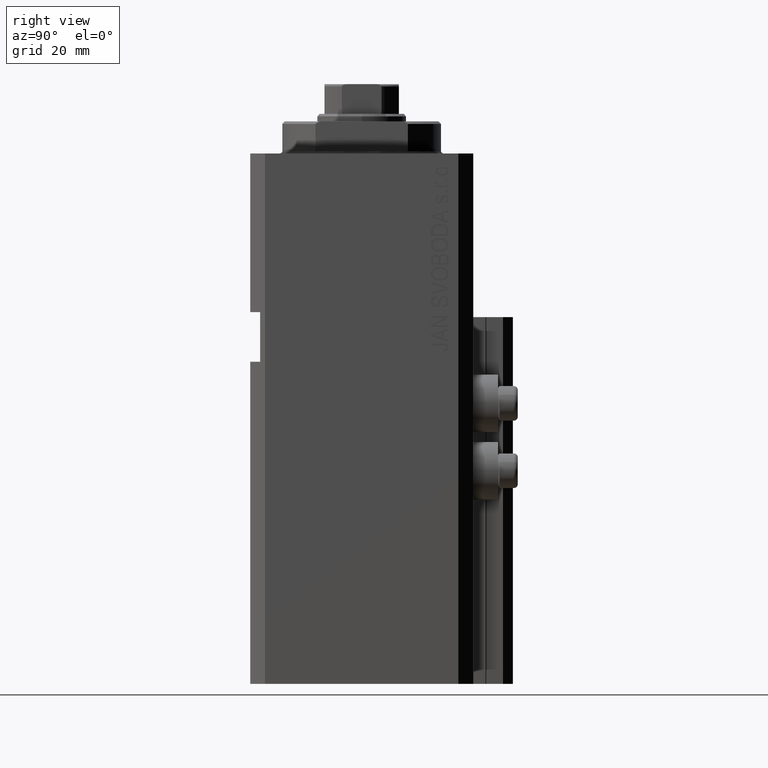
[diagram: clean part render]
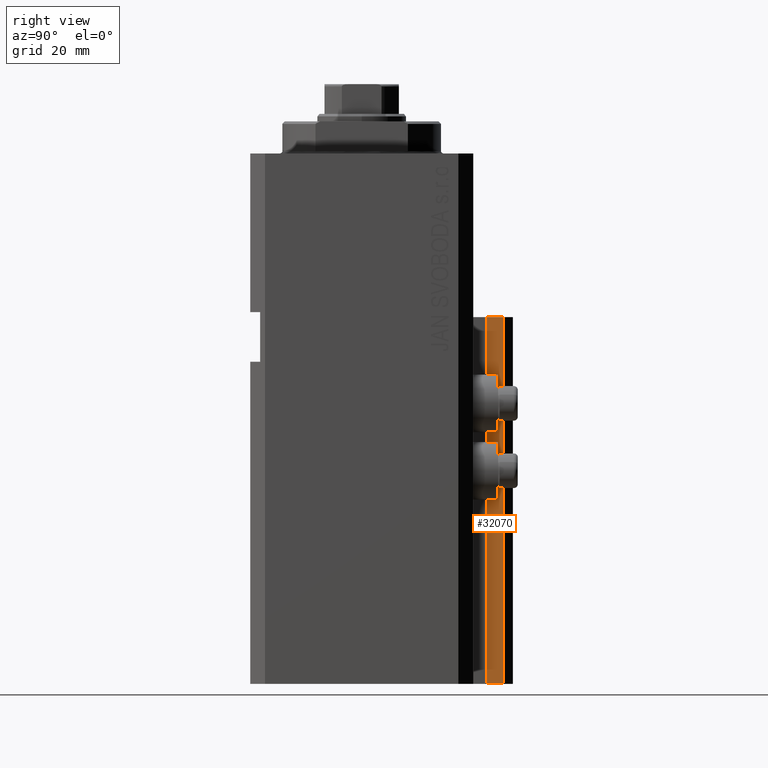
[diagram: same view with one face highlighted and labeled with its STEP entity id]
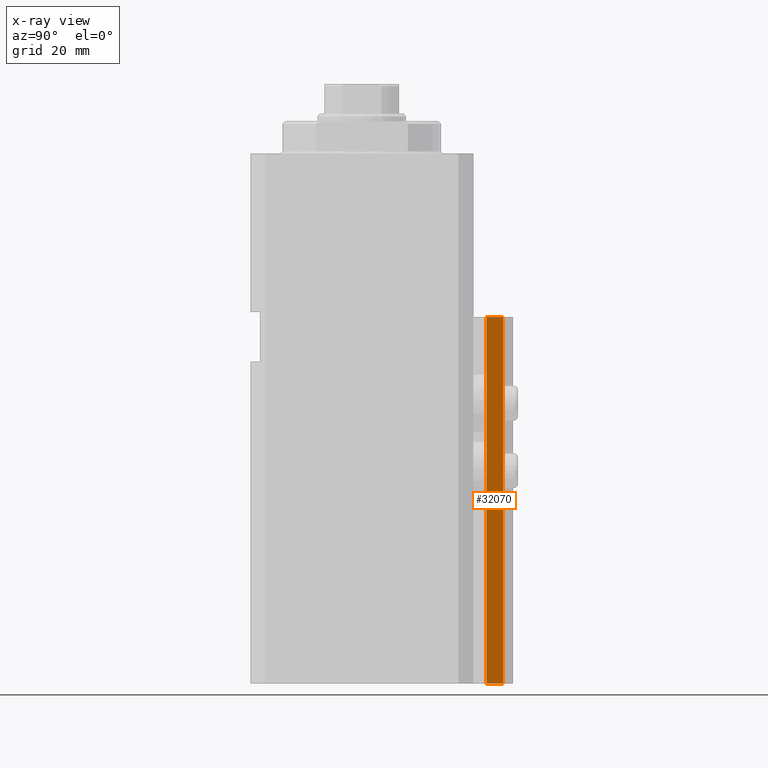
[diagram: x-ray of the same camera — body ghosted, the highlighted face saturated]
A machine part, right view. The second image highlights one B-rep face of the part: STEP entity #32070.
The next image is the same camera in x-ray: the body ghosted, the highlighted face saturated — about 0% of this face is hidden behind the body in this view.
In plain terms, the highlighted planar face has unit normal (1, 0, 0).
Its self-contained STEP definition (entity closure, byte-faithful):
#1697 = EDGE_LOOP ( 'NONE', ( #15334, #7356, #40900, #35478 ) ) ;
#1926 = DIRECTION ( 'NONE',  ( 0.000000000000000000, 1.000000000000000000, 0.000000000000000000 ) ) ;
#3210 = AXIS2_PLACEMENT_3D ( 'NONE', #12862, #12158, #45646 ) ;
#5558 = CARTESIAN_POINT ( 'NONE',  ( 12.00000000000000178, 25.19999999999951257, -33.00000000000000000 ) ) ;
#6274 = CARTESIAN_POINT ( 'NONE',  ( 12.00000000000000355, 25.19999999999951257, -107.0000000000000000 ) ) ;
#6299 = VERTEX_POINT ( 'NONE', #30080 ) ;
#7356 = ORIENTED_EDGE ( 'NONE', *, *, #34231, .F. ) ;
#8122 = CARTESIAN_POINT ( 'NONE',  ( 12.00000000000000355, 25.19999999999951257, -33.00000000000000000 ) ) ;
#10594 = VERTEX_POINT ( 'NONE', #26238 ) ;
#12158 = DIRECTION ( 'NONE',  ( 1.000000000000000000, 0.000000000000000000, 0.000000000000000000 ) ) ;
#12770 = VECTOR ( 'NONE', #27942, 1000.000000000000000 ) ;
#12862 = CARTESIAN_POINT ( 'NONE',  ( 12.00000000000000178, 25.19999999999951257, -107.0000000000000000 ) ) ;
#13932 = EDGE_CURVE ( 'NONE', #15213, #6299, #17329, .T. ) ;
#13980 = LINE ( 'NONE', #6274, #27934 ) ;
#15213 = VERTEX_POINT ( 'NONE', #28471 ) ;
#15334 = ORIENTED_EDGE ( 'NONE', *, *, #46777, .F. ) ;
#17329 = LINE ( 'NONE', #31566, #12770 ) ;
#18680 = PLANE ( 'NONE',  #3210 ) ;
#25376 = VECTOR ( 'NONE', #1926, 1000.000000000000000 ) ;
#26238 = CARTESIAN_POINT ( 'NONE',  ( 12.00000000000000178, 28.49999999999950973, -33.00000000000000000 ) ) ;
#27934 = VECTOR ( 'NONE', #39533, 1000.000000000000000 ) ;
#27942 = DIRECTION ( 'NONE',  ( 0.000000000000000000, 1.000000000000000000, 0.000000000000000000 ) ) ;
#28471 = CARTESIAN_POINT ( 'NONE',  ( 12.00000000000000355, 25.19999999999951257, -107.0000000000000000 ) ) ;
#30080 = CARTESIAN_POINT ( 'NONE',  ( 12.00000000000000178, 28.49999999999950973, -107.0000000000000000 ) ) ;
#31566 = CARTESIAN_POINT ( 'NONE',  ( 12.00000000000000178, 25.19999999999951257, -107.0000000000000000 ) ) ;
#31590 = DIRECTION ( 'NONE',  ( 0.000000000000000000, 0.000000000000000000, 1.000000000000000000 ) ) ;
#32047 = LINE ( 'NONE', #5558, #25376 ) ;
#32070 = ADVANCED_FACE ( 'NONE', ( #36986 ), #18680, .T. ) ;
#34231 = EDGE_CURVE ( 'NONE', #15213, #42109, #13980, .T. ) ;
#35478 = ORIENTED_EDGE ( 'NONE', *, *, #46782, .T. ) ;
#36986 = FACE_OUTER_BOUND ( 'NONE', #1697, .T. ) ;
#38825 = CARTESIAN_POINT ( 'NONE',  ( 12.00000000000000178, 28.49999999999950973, -107.0000000000000000 ) ) ;
#39533 = DIRECTION ( 'NONE',  ( 0.000000000000000000, 0.000000000000000000, 1.000000000000000000 ) ) ;
#40900 = ORIENTED_EDGE ( 'NONE', *, *, #13932, .T. ) ;
#42109 = VERTEX_POINT ( 'NONE', #8122 ) ;
#43858 = VECTOR ( 'NONE', #31590, 1000.000000000000000 ) ;
#45646 = DIRECTION ( 'NONE',  ( 0.000000000000000000, 0.000000000000000000, -1.000000000000000000 ) ) ;
#46761 = LINE ( 'NONE', #38825, #43858 ) ;
#46777 = EDGE_CURVE ( 'NONE', #42109, #10594, #32047, .T. ) ;
#46782 = EDGE_CURVE ( 'NONE', #6299, #10594, #46761, .T. ) ;